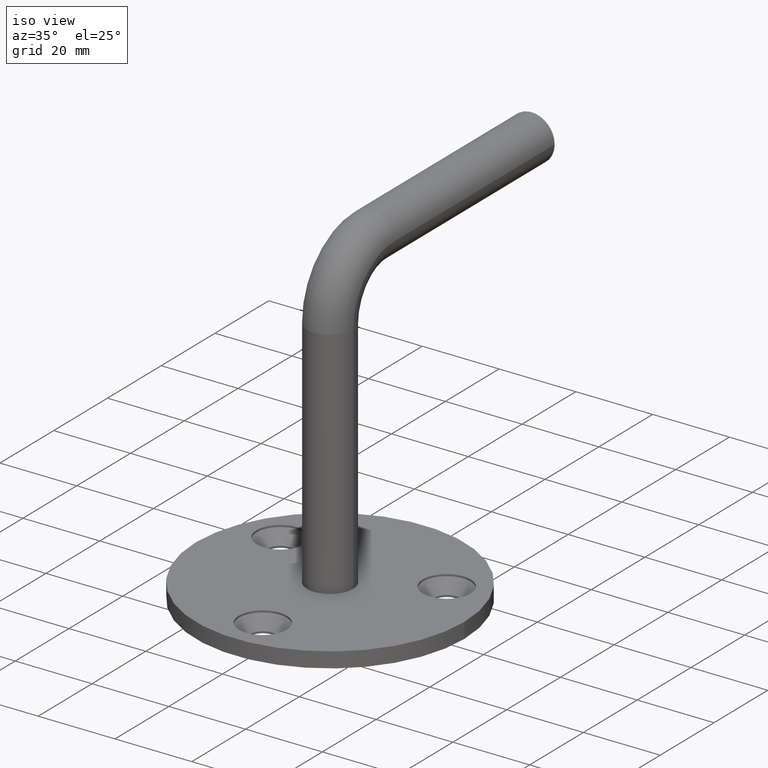
[diagram: clean part render]
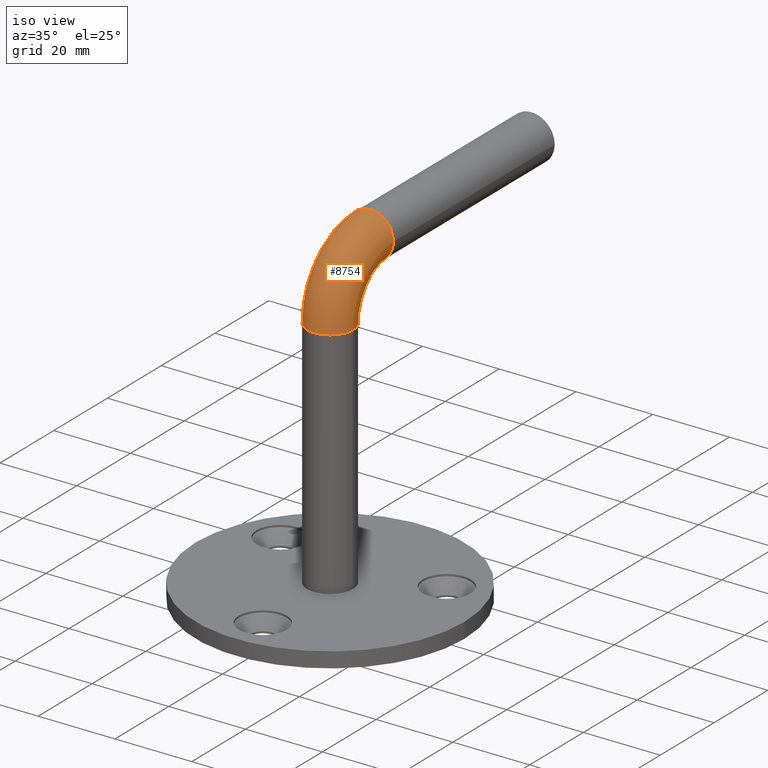
[diagram: same view with one face highlighted and labeled with its STEP entity id]
A machine part, iso view. The second image highlights one B-rep face of the part: STEP entity #8754.
In plain terms, the highlighted toroidal blend (fillet) surface has major radius 15 mm and minor (blend) radius 6 mm.
Its self-contained STEP definition (entity closure, byte-faithful):
#484 = AXIS2_PLACEMENT_3D ( 'NONE', #15924, #7480, #8906 ) ;
#1340 = VERTEX_POINT ( 'NONE', #17223 ) ;
#2836 = TOROIDAL_SURFACE ( 'NONE', #15904, 15.00000000000000000, 6.000000000000000888 ) ;
#2965 = EDGE_CURVE ( 'NONE', #14786, #14786, #11317, .T. ) ;
#3122 = AXIS2_PLACEMENT_3D ( 'NONE', #11421, #5157, #6574 ) ;
#3769 = ORIENTED_EDGE ( 'NONE', *, *, #6751, .T. ) ;
#5157 = DIRECTION ( 'NONE',  ( 0.000000000000000000, 0.000000000000000000, 1.000000000000000000 ) ) ;
#6574 = DIRECTION ( 'NONE',  ( 1.000000000000000000, 0.000000000000000000, 0.000000000000000000 ) ) ;
#6751 = EDGE_CURVE ( 'NONE', #1340, #1340, #6826, .T. ) ;
#6826 = CIRCLE ( 'NONE', #3122, 6.000000000000000888 ) ;
#7480 = DIRECTION ( 'NONE',  ( 0.000000000000000000, 1.000000000000000000, -1.137523590804463822E-16 ) ) ;
#8754 = ADVANCED_FACE ( 'NONE', ( #18084, #15421 ), #2836, .T. ) ;
#8906 = DIRECTION ( 'NONE',  ( 1.000000000000000000, 0.000000000000000000, 0.000000000000000000 ) ) ;
#11313 = CARTESIAN_POINT ( 'NONE',  ( 6.000000000000000888, 14.99999999999999289, 76.00000000000000000 ) ) ;
#11317 = CIRCLE ( 'NONE', #484, 6.000000000000000888 ) ;
#11421 = CARTESIAN_POINT ( 'NONE',  ( 0.000000000000000000, -6.938893903907226800E-15, 60.99999999999998579 ) ) ;
#12072 = CARTESIAN_POINT ( 'NONE',  ( 0.000000000000000000, 14.99999999999999289, 61.00000000000000000 ) ) ;
#13639 = ORIENTED_EDGE ( 'NONE', *, *, #2965, .F. ) ;
#13899 = EDGE_LOOP ( 'NONE', ( #13639 ) ) ;
#14786 = VERTEX_POINT ( 'NONE', #11313 ) ;
#15421 = FACE_OUTER_BOUND ( 'NONE', #15615, .T. ) ;
#15615 = EDGE_LOOP ( 'NONE', ( #3769 ) ) ;
#15904 = AXIS2_PLACEMENT_3D ( 'NONE', #12072, #17773, #16457 ) ;
#15924 = CARTESIAN_POINT ( 'NONE',  ( 0.000000000000000000, 14.99999999999999289, 76.00000000000000000 ) ) ;
#16457 = DIRECTION ( 'NONE',  ( 0.000000000000000000, 0.000000000000000000, 1.000000000000000000 ) ) ;
#17223 = CARTESIAN_POINT ( 'NONE',  ( 6.000000000000000888, -6.938893903907226800E-15, 60.99999999999998579 ) ) ;
#17773 = DIRECTION ( 'NONE',  ( -1.000000000000000000, -0.000000000000000000, 0.000000000000000000 ) ) ;
#18084 = FACE_OUTER_BOUND ( 'NONE', #13899, .T. ) ;